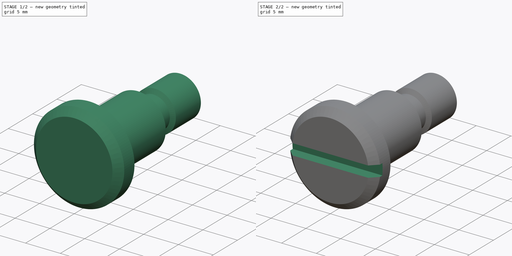
[diagram: build sequence overview — one tinted view per stage of 2, left to right]
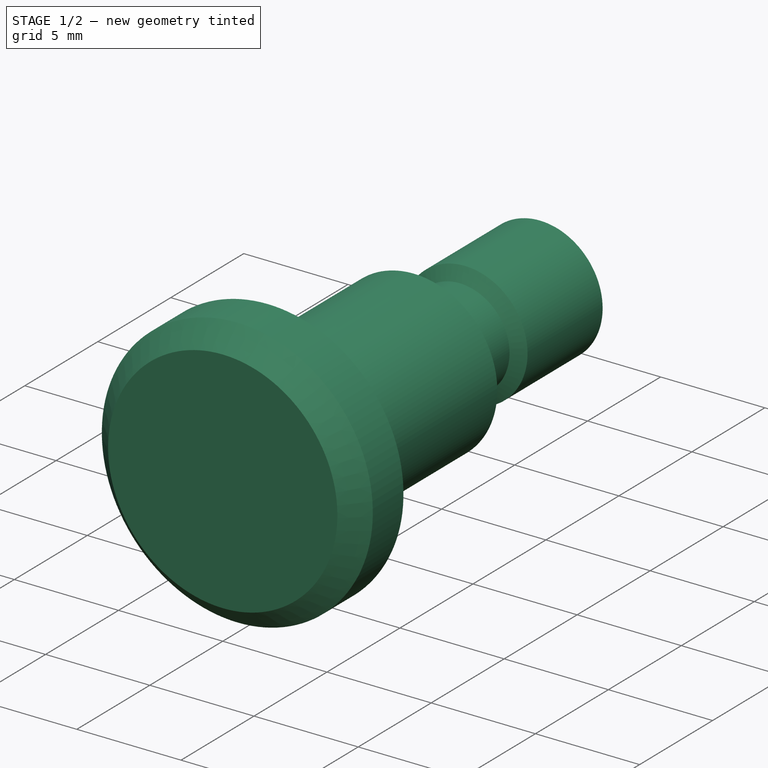
[diagram: stage 1 of 2 — iso view after this stage's code; geometry added in this stage tinted green]
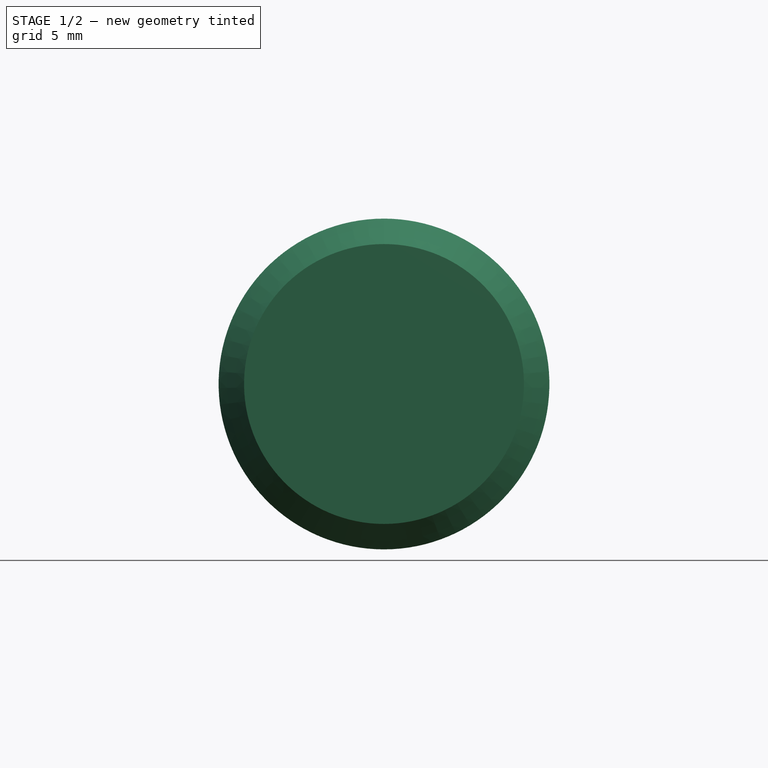
[diagram: stage 1 of 2 — front view after this stage's code; geometry added in this stage tinted green]
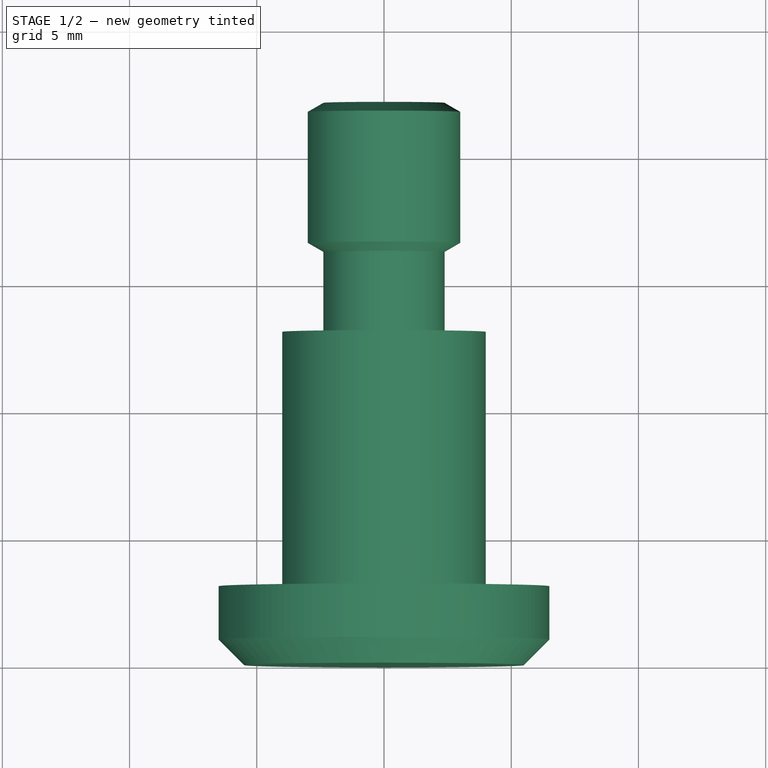
[diagram: stage 1 of 2 — top view after this stage's code; geometry added in this stage tinted green]
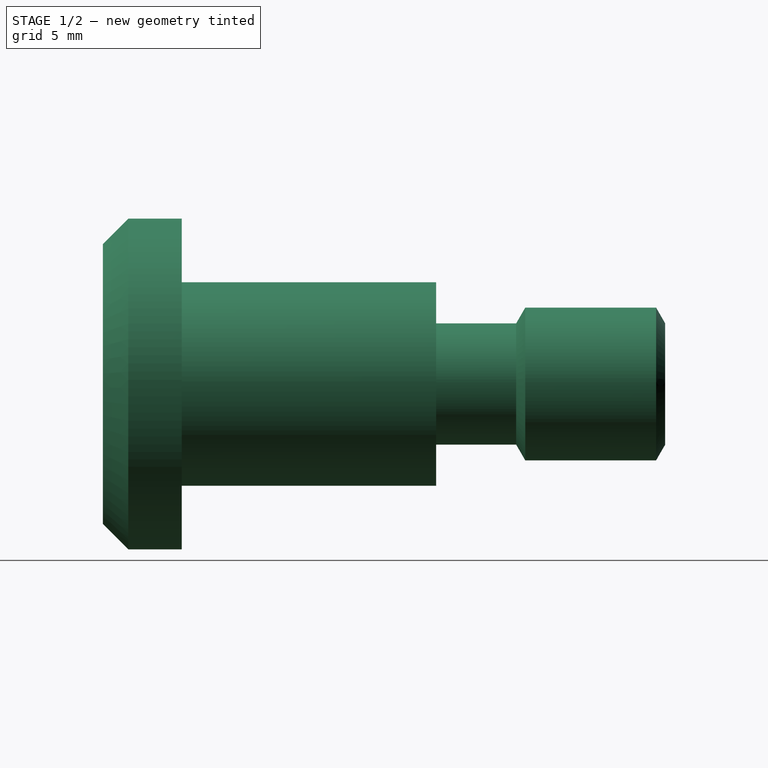
[diagram: stage 1 of 2 — right view after this stage's code; geometry added in this stage tinted green]
FCSTD DOCUMENT  (FreeCAD 0.15R4415 (Git))
Label: Flachkopfschraube DIN 923 - M6
License: CC-BY 3.0
LicenseURL: http://creativecommons.org/licenses/by/3.0/
objects: Sketcher::SketchObject×2, PartDesign::Revolution×1, PartDesign::Pocket×1
note: 6 computed .brp shape members not serialized (recipe doc carries the construction recipe); baked Part::Feature solids carry a one-line shape summary decoded from their .brp

FEATURE [Sketcher::SketchObject] Sketch
  Placement = pos=(0,0,0) rot=(0.57735,0.57735,0.57735;2.0944rad)
  sketch-geometry (12):
    g0: LineSegment StartX=0 StartY=0 StartZ=0 EndX=0 EndY=5.5 EndZ=0
    g1: LineSegment StartX=0 StartY=5.5 StartZ=0 EndX=1 EndY=6.5 EndZ=0
    g2: LineSegment StartX=1 StartY=6.5 StartZ=0 EndX=3.1 EndY=6.5 EndZ=0
    g3: LineSegment StartX=3.1 StartY=6.5 StartZ=0 EndX=3.1 EndY=4 EndZ=0
    g4: LineSegment StartX=3.1 StartY=4 StartZ=0 EndX=13.1 EndY=4 EndZ=0
    g5: LineSegment StartX=13.1 StartY=4 StartZ=0 EndX=13.1 EndY=2.385 EndZ=0
    g6: LineSegment StartX=13.1 StartY=2.385 StartZ=0 EndX=16.2449 EndY=2.385 EndZ=0
    g7: LineSegment StartX=16.2449 StartY=2.385 StartZ=0 EndX=16.6 EndY=3 EndZ=0
    g8: LineSegment StartX=16.6 StartY=3 StartZ=0 EndX=21.7449 EndY=3 EndZ=0
    g9: LineSegment StartX=21.7449 StartY=3 StartZ=0 EndX=22.1 EndY=2.385 EndZ=0
    g10: LineSegment StartX=22.1 StartY=2.385 StartZ=0 EndX=22.1 EndY=0 EndZ=0
    g11: LineSegment StartX=22.1 StartY=0 StartZ=0 EndX=0 EndY=0 EndZ=0
  constraints (35):
    c: Coincident(g-1,g0)
    c: PointOnObject(g0,g-2)
    c: Coincident(g0,g1)
    c: Coincident(g1,g2)
    c: Horizontal(g2)
    c: Coincident(g2,g3)
    c: Vertical(g3)
    c: Coincident(g3,g4)
    c: Horizontal(g4)
    c: Coincident(g4,g5)
    c: Vertical(g5)
    c: Coincident(g5,g6)
    c: Horizontal(g6)
    c: Coincident(g6,g7)
    c: Coincident(g7,g8)
    c: Horizontal(g8)
    c: Coincident(g8,g9)
    c: Coincident(g9,g10)
    c: Vertical(g10)
    c: Coincident(g10,g11)
    c: Coincident(g11,g0)
    c: Horizontal(g11)
    c: DistanceX(g1) = 1
    c: DistanceY(g1) = 1
    c: DistanceY(g-1,g1) = 6.5
    c: DistanceY(g-1,g4) = 4
    c: DistanceX(g4) = 10
    c: DistanceX(g0,g2) = 3.1
    c: DistanceX(g5,g9) = 9
    c: DistanceY(g8,g10) = -3
    c: Equal(g9,g7)
    c: PointOnObject(g9,g6)
    c: DistanceY(g10,g6) = 2.385
    c: DistanceX(g7,g5) = -3.5
    c: Angle(g7,g9) = 1.0472
FEATURE [PartDesign::Revolution] Revolution
  Angle = 360
  Axis = (0,1,0)
  Base = (0,0,0)
  Placement = pos=(0,0,0) rot=(0.57735,0.57735,0.57735;2.0944rad)
  ReferenceAxis = -> Sketch [H_Axis]
  Sketch = -> Sketch
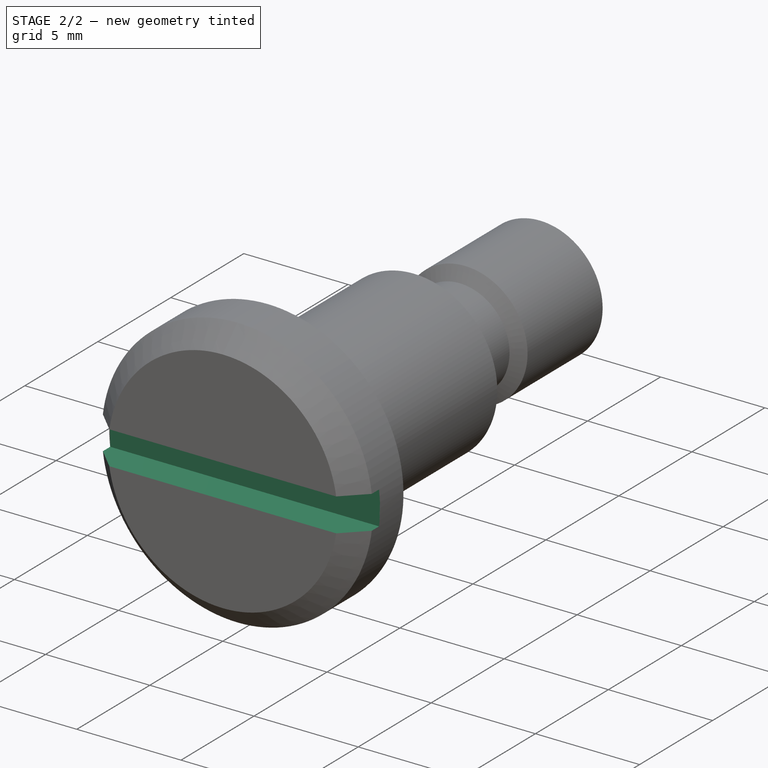
[diagram: stage 2 of 2 — iso view after this stage's code; geometry added in this stage tinted green]
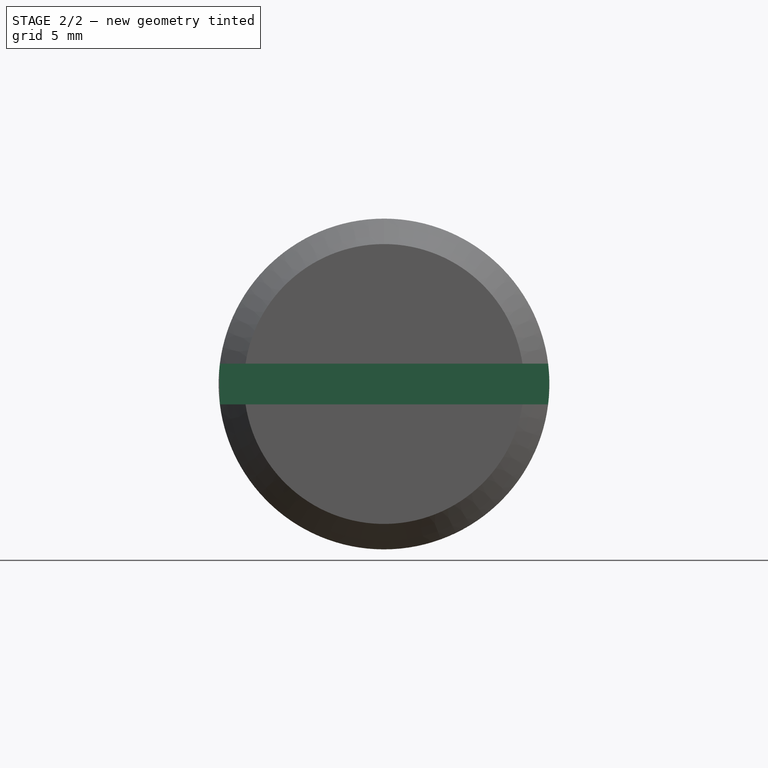
[diagram: stage 2 of 2 — front view after this stage's code; geometry added in this stage tinted green]
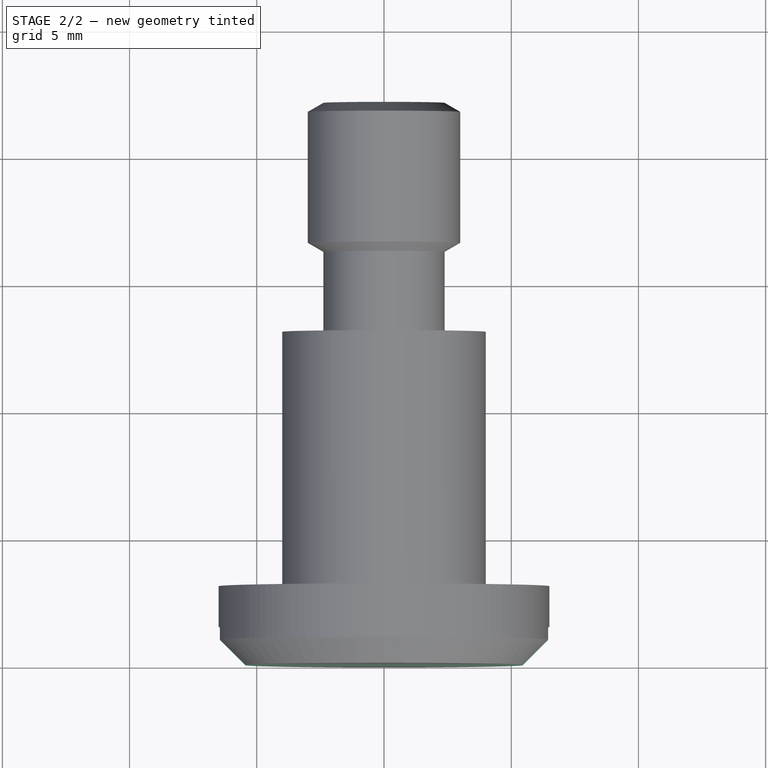
[diagram: stage 2 of 2 — top view after this stage's code; geometry added in this stage tinted green]
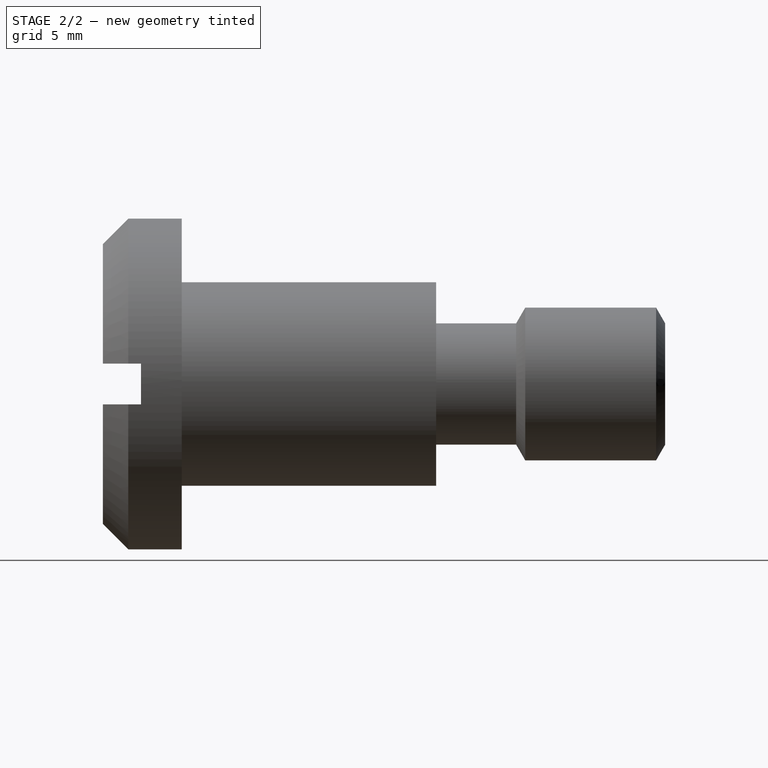
[diagram: stage 2 of 2 — right view after this stage's code; geometry added in this stage tinted green]
FEATURE [Sketcher::SketchObject] Sketch001
  Placement = pos=(0,0,0) rot=(0.57735,0.57735,-0.57735;2.0944rad)
  Support = -> Revolution [Face1]
  sketch-geometry (4):
    g0: LineSegment StartX=-0.8 StartY=-6.5 StartZ=0 EndX=0.8 EndY=-6.5 EndZ=0
    g1: LineSegment StartX=0.8 StartY=-6.5 StartZ=0 EndX=0.8 EndY=6.5 EndZ=0
    g2: LineSegment StartX=0.8 StartY=6.5 StartZ=0 EndX=-0.8 EndY=6.5 EndZ=0
    g3: LineSegment StartX=-0.8 StartY=6.5 StartZ=0 EndX=-0.8 EndY=-6.5 EndZ=0
  constraints (12):
    c: Coincident(g0,g1)
    c: Coincident(g1,g2)
    c: Coincident(g2,g3)
    c: Coincident(g3,g0)
    c: Horizontal(g0)
    c: Horizontal(g2)
    c: Vertical(g1)
    c: Vertical(g3)
    c: Symmetric(g2,g1,g-2)
    c: DistanceY(g3) = -13
    c: Symmetric(g1,g0,g-1)
    c: DistanceX(g2) = -1.6
FEATURE [PartDesign::Pocket] Pocket  label="Flachkopfschraube DIN 923 - M6x10 #"
  Length = 1.5
  Placement = pos=(0,0,0) rot=(0.57735,0.57735,0.57735;2.0944rad)
  Sketch = -> Sketch001
  Type = 0
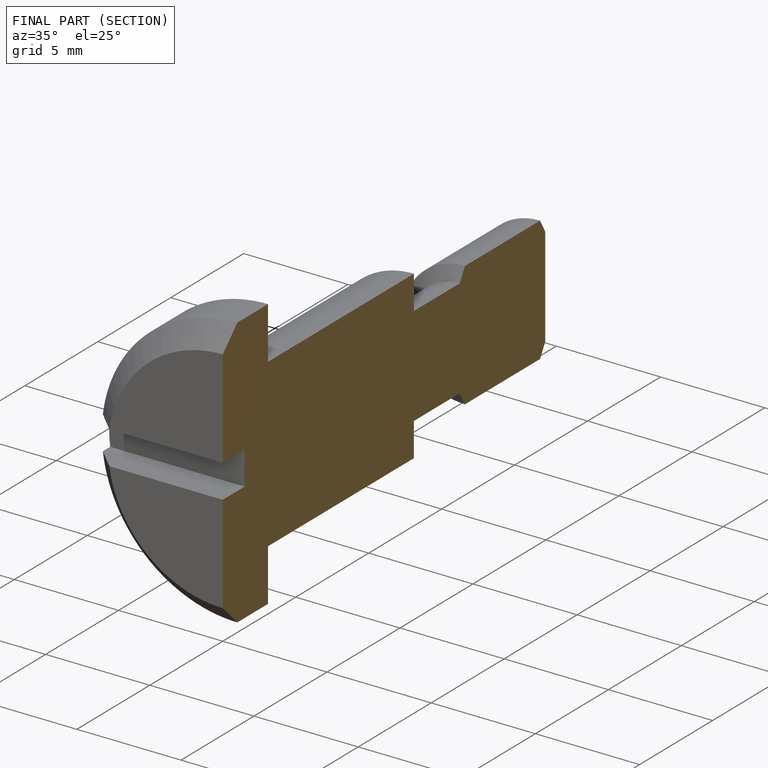
[diagram: finished part — half-section view (interior)]
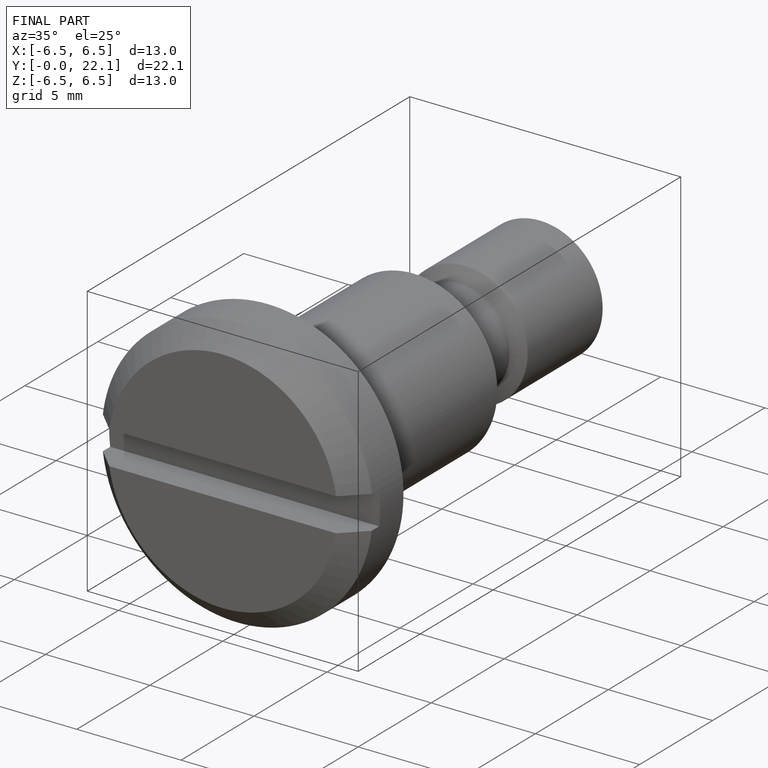
[diagram: finished part — iso view with bounding-box wireframe]
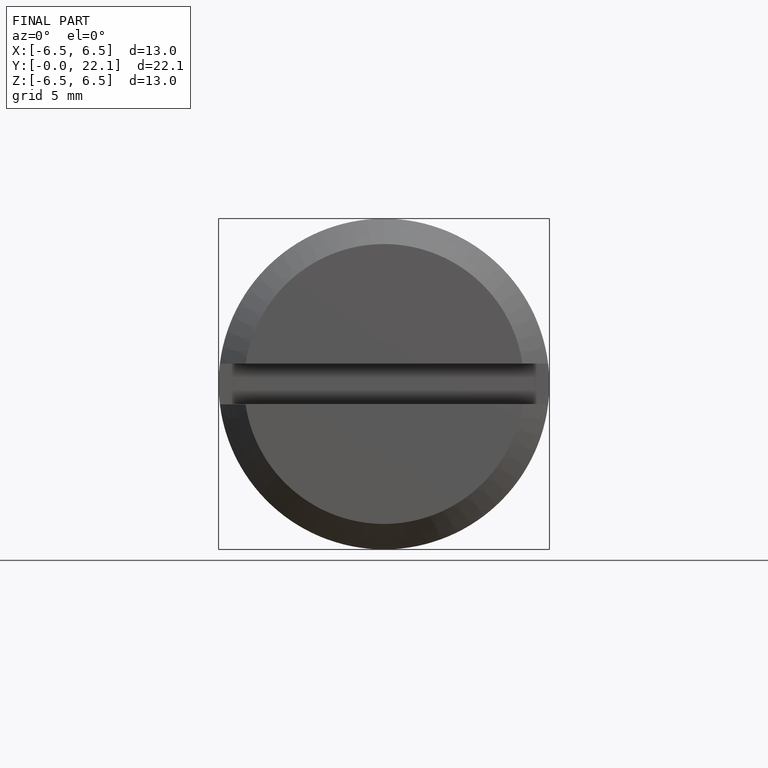
[diagram: finished part — front view with bounding-box wireframe]
